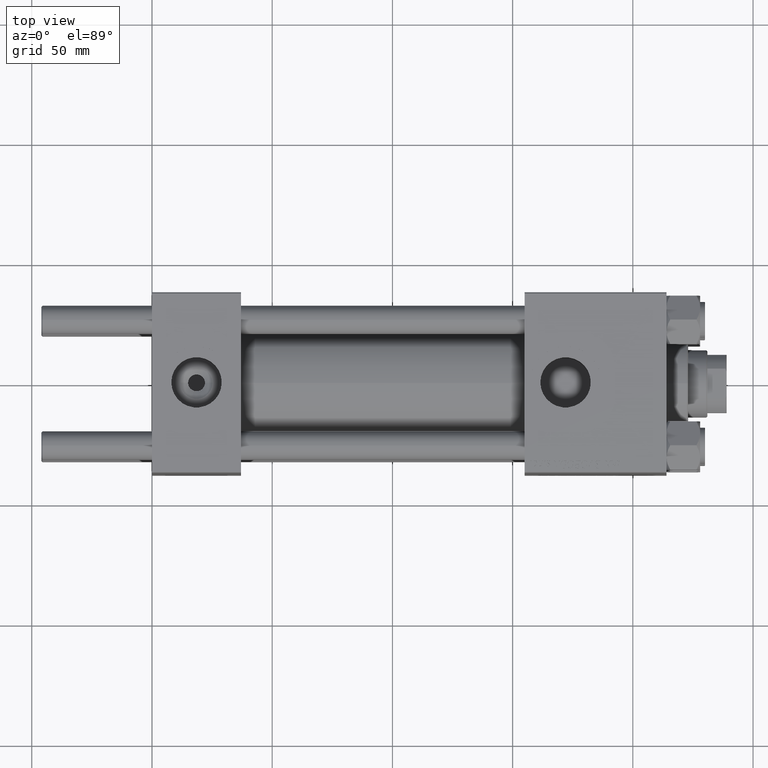
[diagram: clean part render]
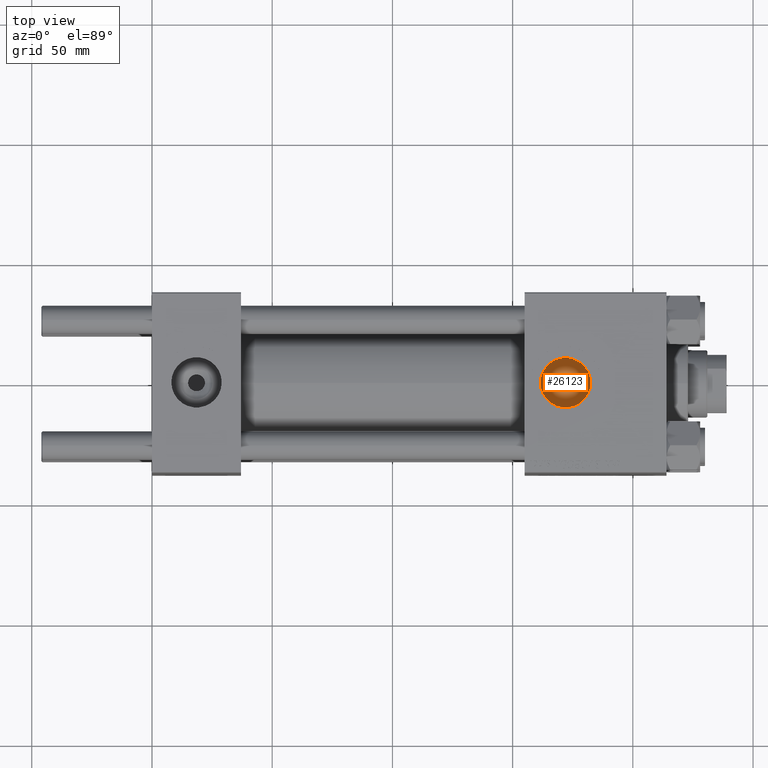
[diagram: same view with one face highlighted and labeled with its STEP entity id]
A machine part, top view. The second image highlights one B-rep face of the part: STEP entity #26123.
In plain terms, the highlighted planar face has unit normal (0, 0, 1).
Its self-contained STEP definition (entity closure, byte-faithful):
#407 = DIRECTION ( 'NONE',  ( 1.000000000000000000, 0.000000000000000000, -0.000000000000000000 ) ) ;
#906 = DIRECTION ( 'NONE',  ( 0.000000000000000000, 0.000000000000000000, 1.000000000000000000 ) ) ;
#1931 = AXIS2_PLACEMENT_3D ( 'NONE', #8195, #906, #407 ) ;
#3687 = DIRECTION ( 'NONE',  ( 0.000000000000000000, 0.000000000000000000, 1.000000000000000000 ) ) ;
#5999 = ORIENTED_EDGE ( 'NONE', *, *, #36547, .T. ) ;
#6400 = ORIENTED_EDGE ( 'NONE', *, *, #31597, .T. ) ;
#7948 = PLANE ( 'NONE',  #1931 ) ;
#8195 = CARTESIAN_POINT ( 'NONE',  ( 172.0000000000000000, -6.938893903907226011E-15, 21.09999999999998010 ) ) ;
#10174 = AXIS2_PLACEMENT_3D ( 'NONE', #19290, #3687, #11225 ) ;
#11225 = DIRECTION ( 'NONE',  ( 1.000000000000000000, 0.000000000000000000, 0.000000000000000000 ) ) ;
#15023 = DIRECTION ( 'NONE',  ( 1.000000000000000000, 0.000000000000000000, 0.000000000000000000 ) ) ;
#17982 = VERTEX_POINT ( 'NONE', #44347 ) ;
#19186 = VERTEX_POINT ( 'NONE', #35212 ) ;
#19290 = CARTESIAN_POINT ( 'NONE',  ( 172.0000000000000000, -6.938893903907226011E-15, 21.09999999999998010 ) ) ;
#23839 = FACE_OUTER_BOUND ( 'NONE', #47338, .T. ) ;
#26123 = ADVANCED_FACE ( 'NONE', ( #23839 ), #7948, .T. ) ;
#29595 = AXIS2_PLACEMENT_3D ( 'NONE', #34124, #49466, #15023 ) ;
#31597 = EDGE_CURVE ( 'NONE', #19186, #17982, #35078, .T. ) ;
#34124 = CARTESIAN_POINT ( 'NONE',  ( 172.0000000000000000, -6.938893903907226011E-15, 21.09999999999998010 ) ) ;
#35078 = CIRCLE ( 'NONE', #10174, 10.47999999999998977 ) ;
#35212 = CARTESIAN_POINT ( 'NONE',  ( 161.5200000000000102, -6.938893903907226011E-15, 21.09999999999998010 ) ) ;
#36547 = EDGE_CURVE ( 'NONE', #17982, #19186, #47279, .T. ) ;
#44347 = CARTESIAN_POINT ( 'NONE',  ( 182.4799999999999613, -5.655464058400802100E-15, 21.09999999999998010 ) ) ;
#47279 = CIRCLE ( 'NONE', #29595, 10.47999999999998977 ) ;
#47338 = EDGE_LOOP ( 'NONE', ( #6400, #5999 ) ) ;
#49466 = DIRECTION ( 'NONE',  ( 0.000000000000000000, 0.000000000000000000, 1.000000000000000000 ) ) ;